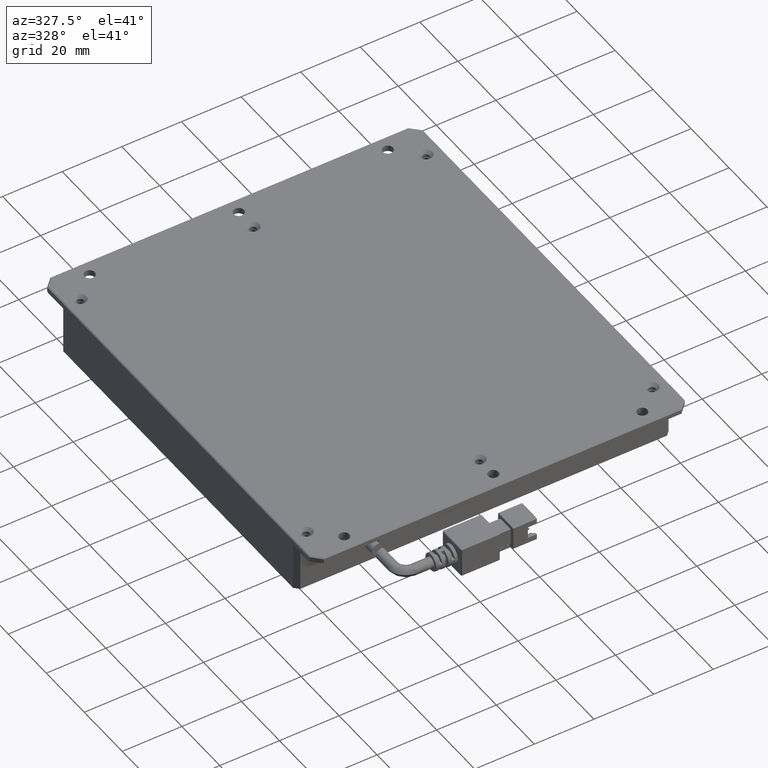
[diagram: clean part render]
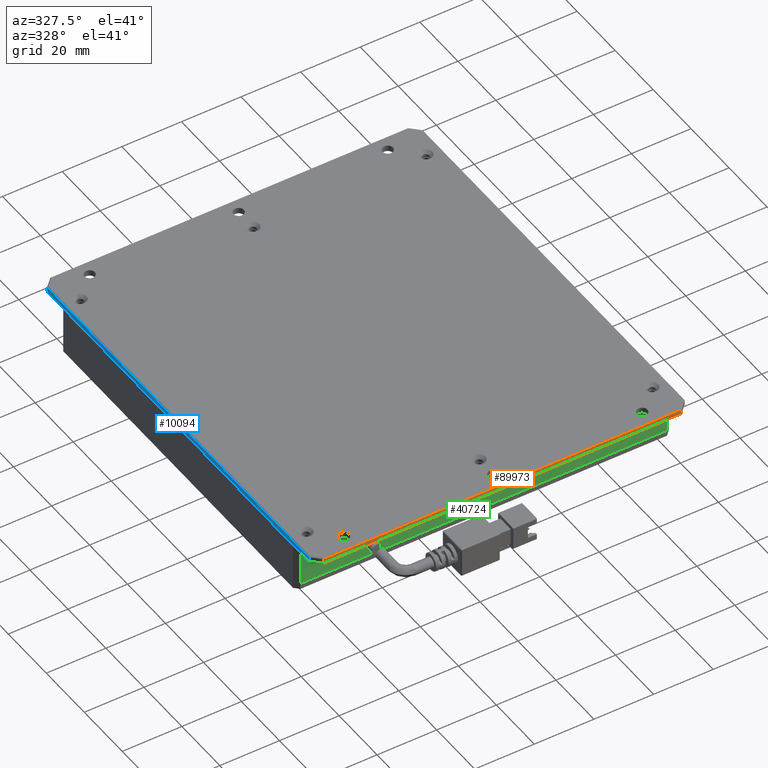
[diagram: same view with three faces highlighted in distinct colors, each labeled with its STEP entity id]
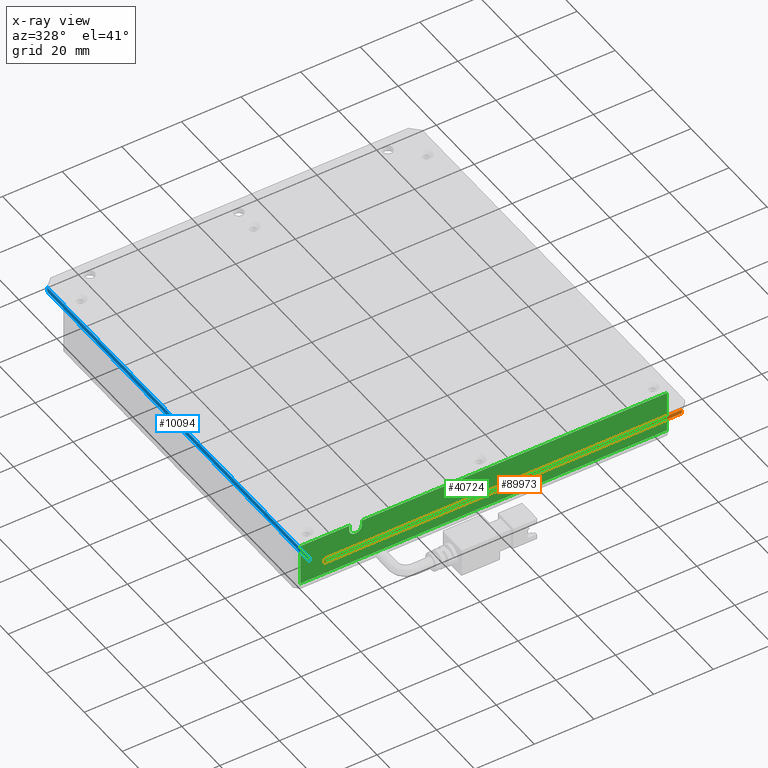
[diagram: x-ray of the same camera — body ghosted, the three highlighted faces saturated]
A machine part, auxiliary view with three faces highlighted in distinct colors.
The next image is the same camera in x-ray (body ghosted, the three faces saturated) — at least one of them is partly hidden behind the body in this view.
Their STEP definitions:

[orange] entity #89973 — the highlighted planar face has unit normal (0, 1, 0).
#3467 = VECTOR ( 'NONE', #39548, 1000.000000000000000 ) ;
#5216 = VECTOR ( 'NONE', #43839, 1000.000000000000000 ) ;
#5792 = VECTOR ( 'NONE', #98892, 1000.000000000000000 ) ;
#6121 = CARTESIAN_POINT ( 'NONE',  ( -60.35509736540663500, -61.11034746086279800, 15.69999999998361200 ) ) ;
#7665 = LINE ( 'NONE', #17904, #5216 ) ;
#8251 = LINE ( 'NONE', #37052, #5792 ) ;
#16650 = CARTESIAN_POINT ( 'NONE',  ( -63.35509736540663500, -61.11034746086279800, 14.29999999998362400 ) ) ;
#16872 = CARTESIAN_POINT ( 'NONE',  ( -63.35509736540663500, -61.11034746086279800, 15.99999999998363100 ) ) ;
#17904 = CARTESIAN_POINT ( 'NONE',  ( -60.35509736540663500, -61.11034746086279800, 15.99999999998363100 ) ) ;
#19819 = EDGE_LOOP ( 'NONE', ( #88236, #83474, #39527, #98183 ) ) ;
#21324 = EDGE_CURVE ( 'NONE', #45729, #61168, #7665, .T. ) ;
#21555 = VERTEX_POINT ( 'NONE', #39077 ) ;
#22689 = EDGE_CURVE ( 'NONE', #85556, #21555, #65865, .T. ) ;
#24501 = DIRECTION ( 'NONE',  ( -1.000000000000000000, -0.0000000000000000000, -0.0000000000000000000 ) ) ;
#24745 = DIRECTION ( 'NONE',  ( 0.0000000000000000000, -0.0000000000000000000, 1.000000000000000000 ) ) ;
#31644 = CARTESIAN_POINT ( 'NONE',  ( 59.64490263459336500, -61.11034746086279800, 15.99999999998363100 ) ) ;
#35859 = FACE_OUTER_BOUND ( 'NONE', #19819, .T. ) ;
#37052 = CARTESIAN_POINT ( 'NONE',  ( -63.35509736540663500, -61.11034746086279800, 15.69999999998360900 ) ) ;
#39077 = CARTESIAN_POINT ( 'NONE',  ( 59.64490263459337900, -61.11034746086279800, 14.29999999998362300 ) ) ;
#39527 = ORIENTED_EDGE ( 'NONE', *, *, #91643, .F. ) ;
#39548 = DIRECTION ( 'NONE',  ( -0.0000000000000000000, 0.0000000000000000000, -1.000000000000000000 ) ) ;
#43839 = DIRECTION ( 'NONE',  ( -0.0000000000000000000, 0.0000000000000000000, -1.000000000000000000 ) ) ;
#45729 = VERTEX_POINT ( 'NONE', #6121 ) ;
#61168 = VERTEX_POINT ( 'NONE', #63083 ) ;
#62017 = LINE ( 'NONE', #16650, #101096 ) ;
#63083 = CARTESIAN_POINT ( 'NONE',  ( -60.35509736540663500, -61.11034746086279800, 14.29999999998362400 ) ) ;
#63250 = EDGE_CURVE ( 'NONE', #21555, #61168, #62017, .T. ) ;
#63336 = PLANE ( 'NONE',  #89581 ) ;
#63337 = CARTESIAN_POINT ( 'NONE',  ( 59.64490263459339300, -61.11034746086279800, 15.69999999998360200 ) ) ;
#65865 = LINE ( 'NONE', #31644, #3467 ) ;
#71499 = DIRECTION ( 'NONE',  ( 0.0000000000000000000, 1.000000000000000000, 0.0000000000000000000 ) ) ;
#83474 = ORIENTED_EDGE ( 'NONE', *, *, #22689, .F. ) ;
#85556 = VERTEX_POINT ( 'NONE', #63337 ) ;
#88236 = ORIENTED_EDGE ( 'NONE', *, *, #63250, .F. ) ;
#89581 = AXIS2_PLACEMENT_3D ( 'NONE', #16872, #71499, #24745 ) ;
#89973 = ADVANCED_FACE ( 'NONE', ( #35859 ), #63336, .F. ) ;
#91643 = EDGE_CURVE ( 'NONE', #45729, #85556, #8251, .T. ) ;
#98183 = ORIENTED_EDGE ( 'NONE', *, *, #21324, .T. ) ;
#98892 = DIRECTION ( 'NONE',  ( 1.000000000000000000, 0.0000000000000000000, -0.0000000000000000000 ) ) ;
#101096 = VECTOR ( 'NONE', #24501, 1000.000000000000000 ) ;

[blue] entity #10094 — the highlighted planar face has unit normal (1, 0, 0).
#675 = LINE ( 'NONE', #2121, #81452 ) ;
#2015 = ORIENTED_EDGE ( 'NONE', *, *, #65788, .F. ) ;
#2121 = CARTESIAN_POINT ( 'NONE',  ( -63.35509736540663500, -58.11034746086279100, 14.29999999998363200 ) ) ;
#2372 = EDGE_LOOP ( 'NONE', ( #97501, #25405, #2015, #56849, #14141, #50668 ) ) ;
#9182 = LINE ( 'NONE', #39305, #27553 ) ;
#9285 = CARTESIAN_POINT ( 'NONE',  ( -63.35509736540663500, 79.46538847042531000, 13.99999999998362700 ) ) ;
#10036 = VECTOR ( 'NONE', #56141, 1000.000000000000200 ) ;
#10094 = ADVANCED_FACE ( 'NONE', ( #80282 ), #54948, .F. ) ;
#12400 = VECTOR ( 'NONE', #92329, 1000.000000000000000 ) ;
#12693 = CARTESIAN_POINT ( 'NONE',  ( -63.35509736540663500, 79.88965253913721700, 15.69999999998360200 ) ) ;
#13839 = CARTESIAN_POINT ( 'NONE',  ( -63.35509736540663500, 82.88965253913721700, 13.99999999998362900 ) ) ;
#14141 = ORIENTED_EDGE ( 'NONE', *, *, #25817, .F. ) ;
#19455 = EDGE_CURVE ( 'NONE', #81049, #41167, #53984, .T. ) ;
#21933 = EDGE_CURVE ( 'NONE', #24257, #66339, #84591, .T. ) ;
#24257 = VERTEX_POINT ( 'NONE', #96384 ) ;
#24698 = VECTOR ( 'NONE', #52674, 1000.000000000000000 ) ;
#25405 = ORIENTED_EDGE ( 'NONE', *, *, #21933, .T. ) ;
#25817 = EDGE_CURVE ( 'NONE', #41167, #60999, #72412, .T. ) ;
#27553 = VECTOR ( 'NONE', #93943, 1000.000000000000000 ) ;
#30664 = CARTESIAN_POINT ( 'NONE',  ( -63.35509736540663500, 79.46538847042533900, 13.99999999998363600 ) ) ;
#33911 = DIRECTION ( 'NONE',  ( -0.0000000000000000000, -0.0000000000000000000, 1.000000000000000000 ) ) ;
#34937 = VECTOR ( 'NONE', #33911, 1000.000000000000000 ) ;
#39305 = CARTESIAN_POINT ( 'NONE',  ( -63.35509736540663500, -61.11034746086279800, 15.69999999998360900 ) ) ;
#39580 = DIRECTION ( 'NONE',  ( 1.000000000000000000, 0.0000000000000000000, 0.0000000000000000000 ) ) ;
#41167 = VERTEX_POINT ( 'NONE', #30664 ) ;
#41807 = CARTESIAN_POINT ( 'NONE',  ( -63.35509736540663500, 79.88965253913721700, 15.99999999998363100 ) ) ;
#46383 = CARTESIAN_POINT ( 'NONE',  ( -63.35509736540663500, -58.11034746086279100, 15.69999999998361200 ) ) ;
#50668 = ORIENTED_EDGE ( 'NONE', *, *, #19455, .F. ) ;
#52674 = DIRECTION ( 'NONE',  ( 0.0000000000000000000, -0.0000000000000000000, 1.000000000000000000 ) ) ;
#53984 = LINE ( 'NONE', #13839, #12400 ) ;
#54948 = PLANE ( 'NONE',  #82037 ) ;
#55893 = EDGE_CURVE ( 'NONE', #60999, #65508, #97280, .T. ) ;
#56141 = DIRECTION ( 'NONE',  ( 2.096980794070746400E-014, 0.8164965809277304800, 0.5773502691896194000 ) ) ;
#56849 = ORIENTED_EDGE ( 'NONE', *, *, #55893, .F. ) ;
#60999 = VERTEX_POINT ( 'NONE', #100312 ) ;
#64368 = DIRECTION ( 'NONE',  ( 0.0000000000000000000, 0.8164965809277172600, -0.5773502691896380500 ) ) ;
#65508 = VERTEX_POINT ( 'NONE', #12693 ) ;
#65788 = EDGE_CURVE ( 'NONE', #65508, #66339, #9182, .T. ) ;
#66339 = VERTEX_POINT ( 'NONE', #46383 ) ;
#70996 = EDGE_CURVE ( 'NONE', #24257, #81049, #675, .T. ) ;
#72412 = LINE ( 'NONE', #9285, #10036 ) ;
#80282 = FACE_OUTER_BOUND ( 'NONE', #2372, .T. ) ;
#81049 = VERTEX_POINT ( 'NONE', #96877 ) ;
#81452 = VECTOR ( 'NONE', #64368, 1000.000000000000200 ) ;
#82037 = AXIS2_PLACEMENT_3D ( 'NONE', #86414, #39580, #94197 ) ;
#84591 = LINE ( 'NONE', #91582, #24698 ) ;
#86414 = CARTESIAN_POINT ( 'NONE',  ( -63.35509736540663500, -61.11034746086279800, 15.99999999998363100 ) ) ;
#91582 = CARTESIAN_POINT ( 'NONE',  ( -63.35509736540663500, -58.11034746086279100, 15.99999999998363100 ) ) ;
#92329 = DIRECTION ( 'NONE',  ( 0.0000000000000000000, 1.000000000000000000, 0.0000000000000000000 ) ) ;
#93943 = DIRECTION ( 'NONE',  ( 0.0000000000000000000, -1.000000000000000000, -0.0000000000000000000 ) ) ;
#94197 = DIRECTION ( 'NONE',  ( 0.0000000000000000000, 0.0000000000000000000, -1.000000000000000000 ) ) ;
#96384 = CARTESIAN_POINT ( 'NONE',  ( -63.35509736540663500, -58.11034746086279800, 14.29999999998362800 ) ) ;
#96877 = CARTESIAN_POINT ( 'NONE',  ( -63.35509736540663500, -57.68608339215089800, 13.99999999998363800 ) ) ;
#97280 = LINE ( 'NONE', #41807, #34937 ) ;
#97501 = ORIENTED_EDGE ( 'NONE', *, *, #70996, .F. ) ;
#100312 = CARTESIAN_POINT ( 'NONE',  ( -63.35509736540663500, 79.88965253913721700, 14.29999999998359300 ) ) ;

[green] entity #40724 — the highlighted planar face has unit normal (0, 1, 0).
#1525 = VERTEX_POINT ( 'NONE', #48955 ) ;
#5341 = VECTOR ( 'NONE', #95074, 1000.000000000000000 ) ;
#7987 = AXIS2_PLACEMENT_3D ( 'NONE', #90525, #43708, #98380 ) ;
#8974 = DIRECTION ( 'NONE',  ( 0.0000000000000000000, -1.000000000000000000, 0.0000000000000000000 ) ) ;
#9053 = CARTESIAN_POINT ( 'NONE',  ( -63.35509736540663500, -51.11034746086289000, -1.637058544279312900E-011 ) ) ;
#11967 = ORIENTED_EDGE ( 'NONE', *, *, #66509, .F. ) ;
#14072 = EDGE_CURVE ( 'NONE', #61454, #69262, #56571, .T. ) ;
#14210 = VECTOR ( 'NONE', #75798, 1000.000000000000000 ) ;
#14450 = ORIENTED_EDGE ( 'NONE', *, *, #14072, .T. ) ;
#14645 = CARTESIAN_POINT ( 'NONE',  ( -61.85509736540662800, -51.11034746086289000, -1.637232016626910500E-011 ) ) ;
#16615 = ORIENTED_EDGE ( 'NONE', *, *, #37971, .F. ) ;
#17537 = CARTESIAN_POINT ( 'NONE',  ( 61.14490263459333600, -51.11034746086289000, 13.99999999998362900 ) ) ;
#19818 = CARTESIAN_POINT ( 'NONE',  ( -61.85509736540663500, -51.11034746086289000, 13.99999999998362900 ) ) ;
#20430 = VERTEX_POINT ( 'NONE', #90800 ) ;
#21358 = AXIS2_PLACEMENT_3D ( 'NONE', #55804, #8974, #63683 ) ;
#23050 = EDGE_LOOP ( 'NONE', ( #51043, #16615, #51145, #14450, #11967, #92942, #58521, #54951, #66504 ) ) ;
#24250 = CARTESIAN_POINT ( 'NONE',  ( -41.25509736540664100, -51.11034746086289000, 13.99999999998362900 ) ) ;
#25081 = CARTESIAN_POINT ( 'NONE',  ( -63.35509736540663500, -51.11034746086289000, 13.99999999998362900 ) ) ;
#28965 = CARTESIAN_POINT ( 'NONE',  ( -63.35509736540663500, -51.11034746086289000, 13.99999999998362900 ) ) ;
#31077 = CARTESIAN_POINT ( 'NONE',  ( -63.35509736540663500, -51.11034746086289000, 13.99999999998362900 ) ) ;
#32021 = AXIS2_PLACEMENT_3D ( 'NONE', #31077, #85800, #38972 ) ;
#32057 = DIRECTION ( 'NONE',  ( 0.0000000000000000000, -0.0000000000000000000, 1.000000000000000000 ) ) ;
#34352 = EDGE_CURVE ( 'NONE', #56554, #20430, #90945, .T. ) ;
#36107 = FACE_OUTER_BOUND ( 'NONE', #23050, .T. ) ;
#36342 = CIRCLE ( 'NONE', #21358, 2.100000000002455900 ) ;
#37000 = CARTESIAN_POINT ( 'NONE',  ( -41.25509736540664100, -51.11034746086289000, 13.99999999998362900 ) ) ;
#37971 = EDGE_CURVE ( 'NONE', #42520, #89256, #93990, .T. ) ;
#38619 = PLANE ( 'NONE',  #32021 ) ;
#38972 = DIRECTION ( 'NONE',  ( 0.0000000000000000000, -0.0000000000000000000, 1.000000000000000000 ) ) ;
#40724 = ADVANCED_FACE ( 'NONE', ( #36107 ), #38619, .F. ) ;
#41919 = EDGE_CURVE ( 'NONE', #61454, #42520, #44456, .T. ) ;
#42520 = VERTEX_POINT ( 'NONE', #43951 ) ;
#43708 = DIRECTION ( 'NONE',  ( 0.0000000000000000000, -1.000000000000000000, 0.0000000000000000000 ) ) ;
#43930 = EDGE_CURVE ( 'NONE', #1525, #63612, #50733, .T. ) ;
#43951 = CARTESIAN_POINT ( 'NONE',  ( -45.45509736540662300, -51.11034746086289000, 13.99999999998362900 ) ) ;
#44456 = LINE ( 'NONE', #25081, #5341 ) ;
#46997 = VECTOR ( 'NONE', #63789, 1000.000000000000000 ) ;
#48918 = DIRECTION ( 'NONE',  ( -0.0000000000000000000, 0.0000000000000000000, -1.000000000000000000 ) ) ;
#48955 = CARTESIAN_POINT ( 'NONE',  ( -41.25509736538599300, -51.11034746091973300, 12.29999999998362800 ) ) ;
#49826 = CARTESIAN_POINT ( 'NONE',  ( 61.14490263459333600, -51.11034746086289700, 13.99999999998362900 ) ) ;
#49864 = EDGE_CURVE ( 'NONE', #63612, #56554, #55733, .T. ) ;
#50733 = LINE ( 'NONE', #24250, #89841 ) ;
#51043 = ORIENTED_EDGE ( 'NONE', *, *, #68611, .F. ) ;
#51145 = ORIENTED_EDGE ( 'NONE', *, *, #41919, .F. ) ;
#54951 = ORIENTED_EDGE ( 'NONE', *, *, #43930, .F. ) ;
#55035 = CARTESIAN_POINT ( 'NONE',  ( -43.35509736540662800, -51.11034746091973300, 10.19999999998117300 ) ) ;
#55733 = LINE ( 'NONE', #28965, #14210 ) ;
#55804 = CARTESIAN_POINT ( 'NONE',  ( -43.35509736540662800, -51.11034746091973300, 12.29999999998363000 ) ) ;
#56554 = VERTEX_POINT ( 'NONE', #49826 ) ;
#56571 = LINE ( 'NONE', #19818, #95695 ) ;
#58521 = ORIENTED_EDGE ( 'NONE', *, *, #49864, .F. ) ;
#60508 = DIRECTION ( 'NONE',  ( -0.0000000000000000000, 0.0000000000000000000, -1.000000000000000000 ) ) ;
#61454 = VERTEX_POINT ( 'NONE', #77122 ) ;
#63612 = VERTEX_POINT ( 'NONE', #37000 ) ;
#63683 = DIRECTION ( 'NONE',  ( 0.0000000000000000000, 0.0000000000000000000, -1.000000000000000000 ) ) ;
#63789 = DIRECTION ( 'NONE',  ( -1.000000000000000000, 0.0000000000000000000, -0.0000000000000000000 ) ) ;
#65227 = EDGE_CURVE ( 'NONE', #74902, #1525, #36342, .T. ) ;
#66504 = ORIENTED_EDGE ( 'NONE', *, *, #65227, .F. ) ;
#66509 = EDGE_CURVE ( 'NONE', #20430, #69262, #70227, .T. ) ;
#68611 = EDGE_CURVE ( 'NONE', #89256, #74902, #72637, .T. ) ;
#69262 = VERTEX_POINT ( 'NONE', #14645 ) ;
#70217 = VECTOR ( 'NONE', #48918, 1000.000000000000000 ) ;
#70227 = LINE ( 'NONE', #9053, #46997 ) ;
#72637 = CIRCLE ( 'NONE', #7987, 2.100000000002455900 ) ;
#73240 = VECTOR ( 'NONE', #60508, 1000.000000000000000 ) ;
#74902 = VERTEX_POINT ( 'NONE', #55035 ) ;
#75798 = DIRECTION ( 'NONE',  ( 1.000000000000000000, 0.0000000000000000000, -0.0000000000000000000 ) ) ;
#77122 = CARTESIAN_POINT ( 'NONE',  ( -61.85509736540662800, -51.11034746086289000, 13.99999999998362900 ) ) ;
#77840 = CARTESIAN_POINT ( 'NONE',  ( -45.45509736539951700, -51.11034746090552300, 12.29999999998363000 ) ) ;
#85800 = DIRECTION ( 'NONE',  ( 0.0000000000000000000, 1.000000000000000000, 0.0000000000000000000 ) ) ;
#89256 = VERTEX_POINT ( 'NONE', #77840 ) ;
#89841 = VECTOR ( 'NONE', #32057, 1000.000000000000000 ) ;
#90525 = CARTESIAN_POINT ( 'NONE',  ( -43.35509736540662800, -51.11034746091973300, 12.29999999998363000 ) ) ;
#90794 = DIRECTION ( 'NONE',  ( -0.0000000000000000000, 0.0000000000000000000, -1.000000000000000000 ) ) ;
#90800 = CARTESIAN_POINT ( 'NONE',  ( 61.14490263459336500, -51.11034746086289000, -1.637578961322105900E-011 ) ) ;
#90945 = LINE ( 'NONE', #17537, #70217 ) ;
#91575 = CARTESIAN_POINT ( 'NONE',  ( -45.45509736540662300, -51.11034746086289000, 13.99999999998362900 ) ) ;
#92942 = ORIENTED_EDGE ( 'NONE', *, *, #34352, .F. ) ;
#93990 = LINE ( 'NONE', #91575, #73240 ) ;
#95074 = DIRECTION ( 'NONE',  ( 1.000000000000000000, 0.0000000000000000000, -0.0000000000000000000 ) ) ;
#95695 = VECTOR ( 'NONE', #90794, 1000.000000000000000 ) ;
#98380 = DIRECTION ( 'NONE',  ( 0.0000000000000000000, 0.0000000000000000000, -1.000000000000000000 ) ) ;